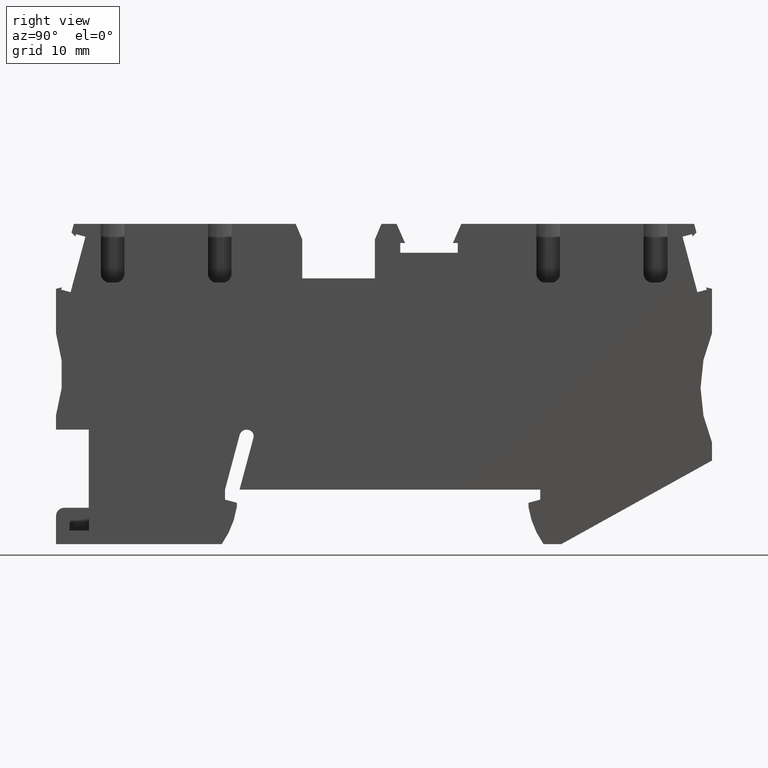
[diagram: clean part render]
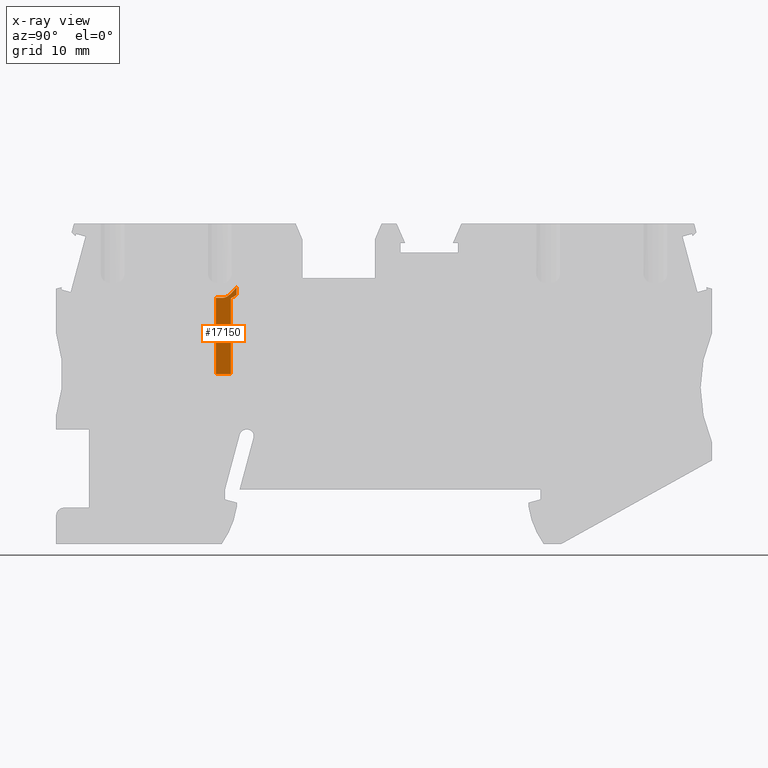
[diagram: x-ray — body ghosted, one internal face saturated and labeled with its STEP entity id]
A machine part, right view, then the same camera in x-ray: the body is ghosted and one INTERNAL B-rep face — a face not visible from any outside direction — is saturated and labeled: STEP entity #17150.
In plain terms, the highlighted planar face has unit normal (-1, 0, -0).
Its self-contained STEP definition (entity closure, byte-faithful):
#14670=CARTESIAN_POINT('',(15.5344617332484,24.6591403803754,
-2.40000000001837));
#14680=DIRECTION('',(-0.121869343405148,0.992546151641322,
-1.24672080833867E-13));
#14690=DIRECTION('',(-0.992546151641323,-0.121869343405148,
-8.43013072998262E-13));
#14700=AXIS2_PLACEMENT_3D('',#14670,#14680,#14690);
#14710=CONICAL_SURFACE('',#14700,2.4,0.523598775598297);
#15100=CARTESIAN_POINT('',(17.2361103568515,23.5188635156148,
-0.950000000016868));
#15110=VERTEX_POINT('',#15100);
#15550=CARTESIAN_POINT('',(17.1314843598614,24.3709738805002,
-0.950000000016975));
#15560=VERTEX_POINT('',#15550);
#15590=CARTESIAN_POINT('',(16.2807575361575,31.2995878483153,
-0.950000000017845));
#15600=DIRECTION('',(0.121869343405148,-0.992546151641323,
1.24702613346614E-13));
#15610=VECTOR('',#15600,1.);
#15620=LINE('',#15590,#15610);
#15630=EDGE_CURVE('',#15560,#15110,#15620,.T.);
#15750=CARTESIAN_POINT('',(15.1718204877414,21.9447125968145,
-0.950000000018593));
#15760=DIRECTION('',(8.51926806997207E-13,-2.10356492885437E-14,-1.));
#15770=DIRECTION('',(0.992546151641323,0.121869343405148,
8.43013072998262E-13));
#15780=AXIS2_PLACEMENT_3D('',#15750,#15760,#15770);
#15790=PLANE('',#15780);
#15800=CARTESIAN_POINT('',(15.6604161913794,31.2234195086867,
-0.950000000018372));
#15810=DIRECTION('',(-0.121869343405145,0.992546151641323,
-1.24702613346611E-13));
#15820=VECTOR('',#15810,1.);
#15830=LINE('',#15800,#15820);
#15840=CARTESIAN_POINT('',(17.6773538247338,14.7967806990293,
-0.950000000016309));
#15850=VERTEX_POINT('',#15840);
#15860=CARTESIAN_POINT('',(16.6597448234645,23.0845409335915,
-0.95000000001735));
#15870=VERTEX_POINT('',#15860);
#15880=EDGE_CURVE('',#15850,#15870,#15830,.T.);
#15890=ORIENTED_EDGE('',*,*,#15880,.F.);
#15900=CARTESIAN_POINT('',(46.5471298868751,45.6063009951029,
-0.949999999992362));
#15910=DIRECTION('',(0.798635510047336,0.601815023151993,
6.6771943026561E-13));
#15920=VECTOR('',#15910,1.);
#15930=LINE('',#15900,#15920);
#15940=EDGE_CURVE('',#15870,#15110,#15930,.T.);
#15950=ORIENTED_EDGE('',*,*,#15940,.F.);
#15960=ORIENTED_EDGE('',*,*,#15630,.T.);
#15970=CARTESIAN_POINT('',(17.1314843597957,24.3709738805777,
-0.950000000016975));
#15980=CARTESIAN_POINT('',(17.1098760532357,24.3354760432065,
-0.950000000016993));
#15990=CARTESIAN_POINT('',(17.0880689836618,24.3001034716639,
-0.95000000001701));
#16000=CARTESIAN_POINT('',(17.0660387305259,24.2648762699014,
-0.950000000017028));
#16010=CARTESIAN_POINT('',(17.044008480305,24.2296490727999,
-0.950000000017046));
#16020=CARTESIAN_POINT('',(17.0217550612111,24.1945670937289,
-0.950000000017065));
#16030=CARTESIAN_POINT('',(16.9992489987557,24.1596536393414,
-0.950000000017083));
#16040=CARTESIAN_POINT('',(16.9767429502418,24.1247402065813,
-0.950000000017102));
#16050=CARTESIAN_POINT('',(16.9539842633777,24.0899950803239,
-0.95000000001712));
#16060=CARTESIAN_POINT('',(16.9309373737113,24.0554461322995,
-0.950000000017139));
#16070=CARTESIAN_POINT('',(16.9078905159796,24.0208972321474,
-0.950000000017158));
#16080=CARTESIAN_POINT('',(16.884555441609,23.9865441967416,
-0.950000000028439));
#16090=CARTESIAN_POINT('',(16.8608892325878,23.9524213975718,
-0.950000000028459));
#16100=CARTESIAN_POINT('',(16.8372201277759,23.9182944231458,
-0.950000000028478));
#16110=CARTESIAN_POINT('',(16.8132404008239,23.8844251755062,
-0.950000000017236));
#16120=CARTESIAN_POINT('',(16.7888098074239,23.8507371074688,
-0.950000000017256));
#16130=CARTESIAN_POINT('',(16.7643847928214,23.8170567322004,
-0.950000000017276));
#16140=CARTESIAN_POINT('',(16.7395398404386,23.7836018394987,
-0.950000000017297));
#16150=CARTESIAN_POINT('',(16.7142399605236,23.7504717393605,
-0.950000000017318));
#16160=CARTESIAN_POINT('',(16.6889400042219,23.7173415391942,
-0.950000000017339));
#16170=CARTESIAN_POINT('',(16.6631851042663,23.6845355216204,
-0.95000000001736));
#16180=CARTESIAN_POINT('',(16.6369238598582,23.6521599573999,
-0.950000000017381));
#16190=CARTESIAN_POINT('',(16.6106625617102,23.6197843269271,
-0.950000000017403));
#16200=CARTESIAN_POINT('',(16.5838946588044,23.5878380068244,
-0.950000000017424));
#16210=CARTESIAN_POINT('',(16.5565478056356,23.5564391351435,
-0.950000000017447));
#16220=CARTESIAN_POINT('',(16.5292010146651,23.5250403348769,
-0.95000000001747));
#16230=CARTESIAN_POINT('',(16.5012745171058,23.4941870205855,
-0.950000000017494));
#16240=CARTESIAN_POINT('',(16.472671027741,23.4640188984371,
-0.950000000017517));
#16250=CARTESIAN_POINT('',(16.4583692138845,23.4489347644049,
-0.950000000017529));
#16260=CARTESIAN_POINT('',(16.4438975517307,23.4340221380805,
-0.950000000017541));
#16270=CARTESIAN_POINT('',(16.4292411960879,23.419301559724,
-0.950000000017553));
#16280=CARTESIAN_POINT('',(16.4145848659311,23.4045810069651,
-0.950000000017565));
#16290=CARTESIAN_POINT('',(16.3997437668536,23.3900523815506,
-0.950000000017578));
#16300=CARTESIAN_POINT('',(16.3847013559204,23.375739201962,
-0.95000000001759));
#16310=CARTESIAN_POINT('',(16.3696589864331,23.3614260618101,
-0.950000000017603));
#16320=CARTESIAN_POINT('',(16.3544151990553,23.3473282220033,
-0.95000000001808));
#16330=CARTESIAN_POINT('',(16.3389519009905,23.3334729743744,
-0.950000000018093));
#16340=CARTESIAN_POINT('',(16.323494608473,23.3196231077674,
-0.950000000018106));
#16350=CARTESIAN_POINT('',(16.3077969174042,23.3059964504511,
-0.950000000026525));
#16360=CARTESIAN_POINT('',(16.2918264971946,23.2926185357032,
-0.950000000026538));
#16370=CARTESIAN_POINT('',(16.2598915344585,23.2658676297559,
-0.950000000026565));
#16380=CARTESIAN_POINT('',(16.2269143588774,23.2401534077499,
-0.950000000017722));
#16390=CARTESIAN_POINT('',(16.1929024159104,23.215934121025,
-0.950000000017751));
#16400=CARTESIAN_POINT('',(16.1588902989632,23.191714710412,
-0.950000000017779));
#16410=CARTESIAN_POINT('',(16.1238422143166,23.1689906317359,
-0.950000000017809));
#16420=CARTESIAN_POINT('',(16.0877609674096,23.148225190826,
-0.950000000017839));
#16430=CARTESIAN_POINT('',(16.0697203583451,23.1378424786522,
-0.950000000017854));
#16440=CARTESIAN_POINT('',(16.0514215508152,23.1279495010846,
-0.950000000018568));
#16450=CARTESIAN_POINT('',(16.0328654015327,23.1186033355746,
-0.950000000018583));
#16460=CARTESIAN_POINT('',(16.0143045198918,23.1092547865201,
-0.950000000018599));
#16470=CARTESIAN_POINT('',(15.9955202683571,23.1004669291869,
-0.950000000017967));
#16480=CARTESIAN_POINT('',(15.9763664450146,23.092235078428,
-0.950000000017983));
#16490=CARTESIAN_POINT('',(15.9572212245518,23.0840069249791,
-0.950000000018));
#16500=CARTESIAN_POINT('',(15.9377541799114,23.0763596398576,
-0.950000000018517));
#16510=CARTESIAN_POINT('',(15.9180164933711,23.0693746131141,
-0.950000000018534));
#16520=CARTESIAN_POINT('',(15.8982789993595,23.0623896545052,
-0.950000000018551));
#16530=CARTESIAN_POINT('',(15.878272626327,23.0560680319112,
-0.950000000018321));
#16540=CARTESIAN_POINT('',(15.8580626238409,23.050474383972,
-0.950000000018338));
#16550=CARTESIAN_POINT('',(15.837852645964,23.044880742844,
-0.950000000018355));
#16560=CARTESIAN_POINT('',(15.8174415186186,23.0400160374336,
-0.950000000018092));
#16570=CARTESIAN_POINT('',(15.7969034171549,23.0359207419747,
-0.950000000018109));
#16580=CARTESIAN_POINT('',(15.7763651367266,23.0318254108303,
-0.950000000018127));
#16590=CARTESIAN_POINT('',(15.7557028415227,23.0285000762301,
-0.950000000018118));
#16600=CARTESIAN_POINT('',(15.7349914331755,23.0259570350506,
-0.950000000018136));
#16610=B_SPLINE_CURVE_WITH_KNOTS('',3,(#15970,#15980,#15990,#16000,
#16010,#16020,#16030,#16040,#16050,#16060,#16070,#16080,#16090,#16100,
#16110,#16120,#16130,#16140,#16150,#16160,#16170,#16180,#16190,#16200,
#16210,#16220,#16230,#16240,#16250,#16260,#16270,#16280,#16290,#16300,
#16310,#16320,#16330,#16340,#16350,#16360,#16370,#16380,#16390,#16400,
#16410,#16420,#16430,#16440,#16450,#16460,#16470,#16480,#16490,#16500,
#16510,#16520,#16530,#16540,#16550,#16560,#16570,#16580,#16590,#16600),
.UNSPECIFIED.,.F.,.F.,(4,3,3,3,3,3,3,3,3,3,3,3,3,3,3,3,3,3,3,3,3,4),(0.,
0.124659623733781,0.249290734640307,0.373894111837732,0.498478468382624,
0.623120804544055,0.748079208272145,0.873155610548147,0.998153145687015,
1.12296953650663,1.18530719705894,1.24761058841905,1.30989812126659,
1.37226997891595,1.49746790769828,1.6225733898696,1.68495913840003,
1.747317856377,1.80999746825144,1.87287277945552,1.93575379575735,
1.99847696241268),.UNSPECIFIED.);
#16620=SURFACE_CURVE('',#16610,(#14710,#15790),.CURVE_3D.);
#16630=CARTESIAN_POINT('',(15.7349914331755,23.0259570350506,
-0.950000000018136));
#16640=VERTEX_POINT('',#16630);
#16650=EDGE_CURVE('',#15560,#16640,#16620,.T.);
#16660=ORIENTED_EDGE('',*,*,#16650,.F.);
#16670=CARTESIAN_POINT('',(66.7549985572156,29.2904262070389,
-0.949999999974803));
#16680=DIRECTION('',(0.992546151641323,0.121869343405148,
8.43013072998262E-13));
#16690=VECTOR('',#16680,1.);
#16700=LINE('',#16670,#16690);
#16710=CARTESIAN_POINT('',(15.1394637422206,22.9528354290112,
-0.950000000018642));
#16720=VERTEX_POINT('',#16710);
#16730=EDGE_CURVE('',#16720,#16640,#16700,.T.);
#16740=ORIENTED_EDGE('',*,*,#16730,.T.);
#16750=CARTESIAN_POINT('',(14.9389340422636,24.5860187743323,
-2.40000000001887));
#16760=DIRECTION('',(-0.121869343405151,0.992546151641322,
-1.24565249573513E-13));
#16770=DIRECTION('',(-0.992546151641323,-0.121869343405148,
-8.43013072998262E-13));
#16780=AXIS2_PLACEMENT_3D('',#16750,#16760,#16770);
#16790=CONICAL_SURFACE('',#16780,2.4,0.523598775598299);
#16800=CARTESIAN_POINT('',(15.1394637422206,22.9528354290112,
-0.950000000018642));
#16810=CARTESIAN_POINT('',(15.1290459426914,22.95155628407,
-0.950000000018651));
#16820=CARTESIAN_POINT('',(15.1186101543794,22.9504739646639,
-0.95000000001866));
#16830=CARTESIAN_POINT('',(15.1081671617503,22.9495881511238,
-0.950000000018669));
#16840=CARTESIAN_POINT('',(15.0977241475262,22.9487023357518,
-0.950000000018678));
#16850=CARTESIAN_POINT('',(15.0872740319895,22.9480130252692,
-0.950000000018687));
#16860=CARTESIAN_POINT('',(15.0768271363348,22.9475180323313,
-0.950000000018696));
#16870=CARTESIAN_POINT('',(15.0663802092812,22.9470230379056,
-0.950000000018705));
#16880=CARTESIAN_POINT('',(15.0559365977067,22.9467223509884,
-0.950000000018713));
#16890=CARTESIAN_POINT('',(15.0455057978482,22.9466120910851,
-0.950000000018722));
#16900=CARTESIAN_POINT('',(15.0350749561426,22.9465018307394,
-0.950000000018731));
#16910=CARTESIAN_POINT('',(15.0246570103072,22.9465819795461,
-0.950000000029944));
#16920=CARTESIAN_POINT('',(15.0142602729548,22.9468472253417,
-0.950000000029953));
#16930=B_SPLINE_CURVE_WITH_KNOTS('',3,(#16800,#16810,#16820,#16830,
#16840,#16850,#16860,#16870,#16880,#16890,#16900,#16910,#16920),
.UNSPECIFIED.,.F.,.F.,(4,3,3,3,4),(0.,0.0314664441960831,
0.0628765828717107,0.0942127862635536,0.12546089048555),.UNSPECIFIED.);
#16940=SURFACE_CURVE('',#16930,(#16790,#15790),.CURVE_3D.);
#16950=CARTESIAN_POINT('',(15.014260272966,22.9468472253425,
-0.950000000018749));
#16960=VERTEX_POINT('',#16950);
#16970=EDGE_CURVE('',#16720,#16960,#16940,.T.);
#16980=ORIENTED_EDGE('',*,*,#16970,.F.);
#16990=CARTESIAN_POINT('',(18.3854347648819,-4.50916570599854,
-0.9500000000153));
#17000=DIRECTION('',(0.121869343405031,-0.992546151641337,
1.24702613346515E-13));
#17010=VECTOR('',#17000,1.);
#17020=LINE('',#16990,#17010);
#17030=CARTESIAN_POINT('',(16.0396526745267,14.5956962824109,
-0.9500000000177));
#17040=VERTEX_POINT('',#17030);
#17050=EDGE_CURVE('',#16960,#17040,#17020,.T.);
#17060=ORIENTED_EDGE('',*,*,#17050,.F.);
#17070=CARTESIAN_POINT('',(49.8451007978992,18.7464833863651,
-0.949999999988987));
#17080=DIRECTION('',(0.992546151641323,0.121869343405148,
8.43013072998262E-13));
#17090=VECTOR('',#17080,1.);
#17100=LINE('',#17070,#17090);
#17110=EDGE_CURVE('',#17040,#15850,#17100,.T.);
#17120=ORIENTED_EDGE('',*,*,#17110,.F.);
#17130=EDGE_LOOP('',(#17120,#17060,#16980,#16740,#16660,#15960,#15950,
#15890));
#17140=FACE_OUTER_BOUND('',#17130,.T.);
#17150=ADVANCED_FACE('',(#17140),#15790,.T.);